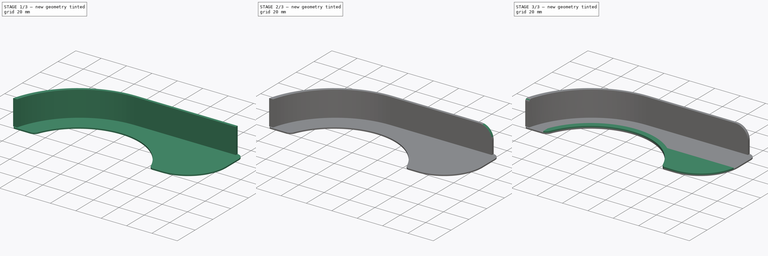
[diagram: build sequence overview — one tinted view per stage of 3, left to right]
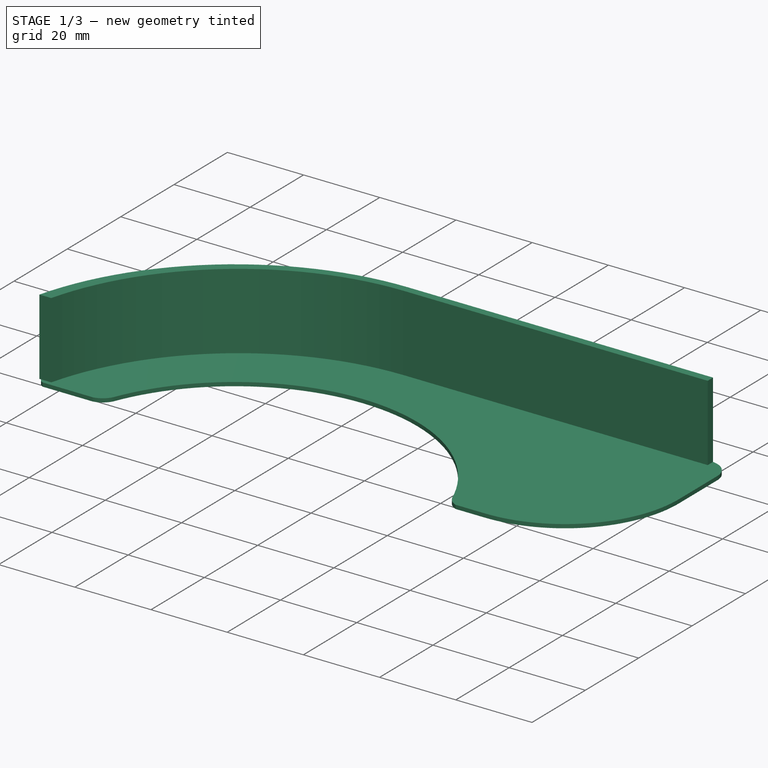
[diagram: stage 1 of 3 — iso view after this stage's code; geometry added in this stage tinted green]
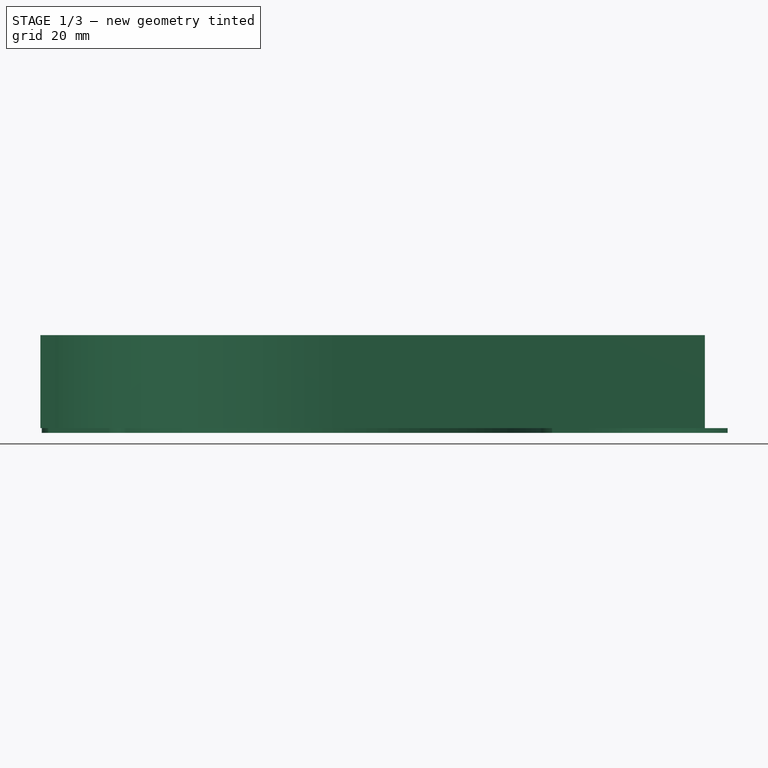
[diagram: stage 1 of 3 — front view after this stage's code; geometry added in this stage tinted green]
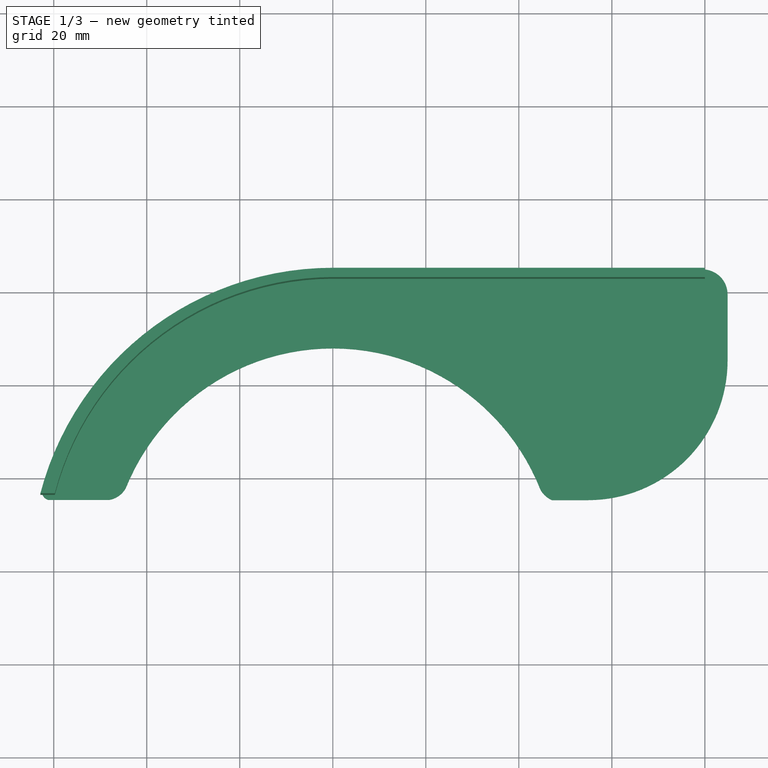
[diagram: stage 1 of 3 — top view after this stage's code; geometry added in this stage tinted green]
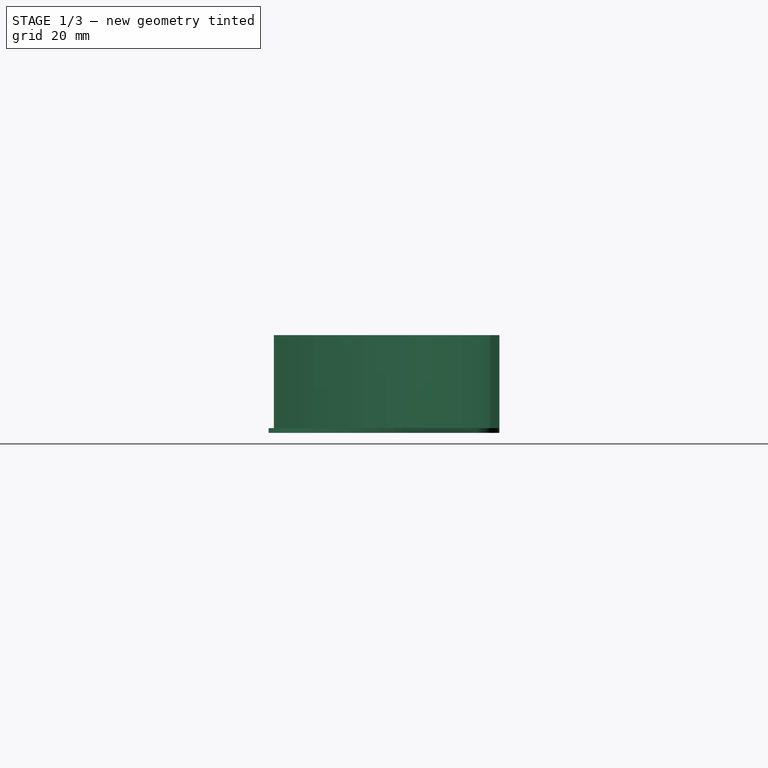
[diagram: stage 1 of 3 — right view after this stage's code; geometry added in this stage tinted green]
FCSTD DOCUMENT  (FreeCAD 0.16R)
Label: V2
License: All rights reserved
LicenseURL: http://en.wikipedia.org/wiki/All_rights_reserved
objects: Sketcher::SketchObject×3, PartDesign::Pad×3, PartDesign::Fillet×2
note: 11 computed .brp shape members not serialized (recipe doc carries the construction recipe); baked Part::Feature solids carry a one-line shape summary decoded from their .brp

FEATURE [PartDesign::Pad] Pad  label="Faceplate"
  Length = 1
  Length2 = 100
  Sketch = -> Sketch
  Type = 0
FEATURE [Sketcher::SketchObject] Sketch001
  Placement = pos=(0,0,1) rot=(0,0,1;0rad)
  Support = -> Pad [Face13]
  sketch-geometry (6):
    g0: ArcOfCircle CenterX=0 CenterY=0 CenterZ=0 NormalX=0 NormalY=0 NormalZ=1 Radius=65 StartAngle=1.5708 EndAngle=2.88461
    g1: LineSegment StartX=6.04881e-05 StartY=65 StartZ=0 EndX=80.0001 EndY=65 EndZ=0
    g2: LineSegment StartX=80.0001 StartY=63 StartZ=0 EndX=6.04881e-05 EndY=63 EndZ=0
    g3: LineSegment StartX=80.0001 StartY=65 StartZ=0 EndX=80.0001 EndY=63 EndZ=0
    g4: ArcOfCircle CenterX=0.26057 CenterY=1.00055 CenterZ=0 NormalX=0 NormalY=0 NormalZ=1 Radius=62 StartAngle=1.575 EndAngle=2.88858
    g5: LineSegment StartX=-62.8655 StartY=16.5204 StartZ=0 EndX=-59.7655 EndY=16.5204 EndZ=0
  constraints (19):
    c: Radius(g0) = 65
    c: Coincident(g-1,g0)
    c: Horizontal(g1)
    c: Coincident(g0,g1)
    c: DistanceY(g-1,g1) = 65
    c: Horizontal(g2)
    c: Equal(g2,g1)
    c: DistanceX(g0,g2) = 0
    c: Coincident(g3,g2)
    c: Coincident(g3,g1)
    c: DistanceY(g2,g1) = 2
    c: Radius(g4) = 62
    c: Coincident(g4,g2)
    c: DistanceX(g0,g4) = 3.1
    c: DistanceY(g4,g0) = 0
    c: DistanceY(g-1,g0) = 16.5204
    c: Coincident(g4,g5)
    c: Coincident(g5,g0)
    c: Distance(g1) = 80
FEATURE [PartDesign::Pad] Pad004  label="Connector"
  Length = 20
  Length2 = 100
  Sketch = -> Sketch001
  Type = 0
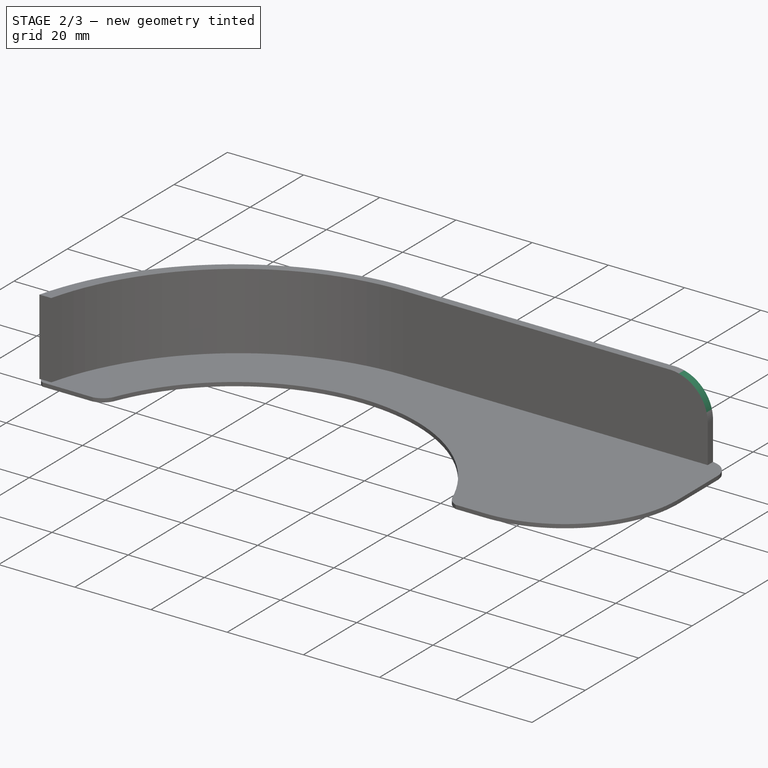
[diagram: stage 2 of 3 — iso view after this stage's code; geometry added in this stage tinted green]
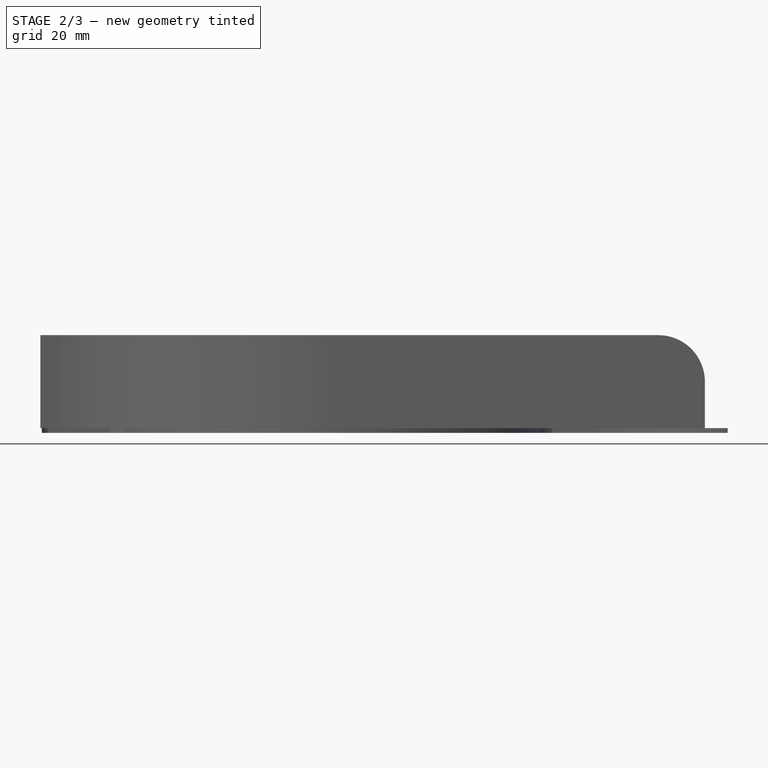
[diagram: stage 2 of 3 — front view after this stage's code; geometry added in this stage tinted green]
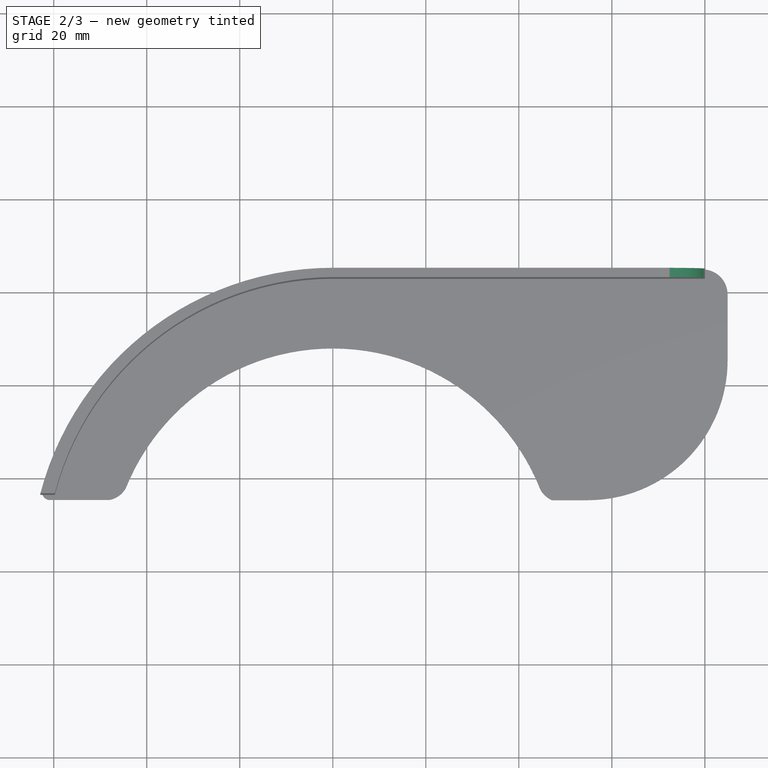
[diagram: stage 2 of 3 — top view after this stage's code; geometry added in this stage tinted green]
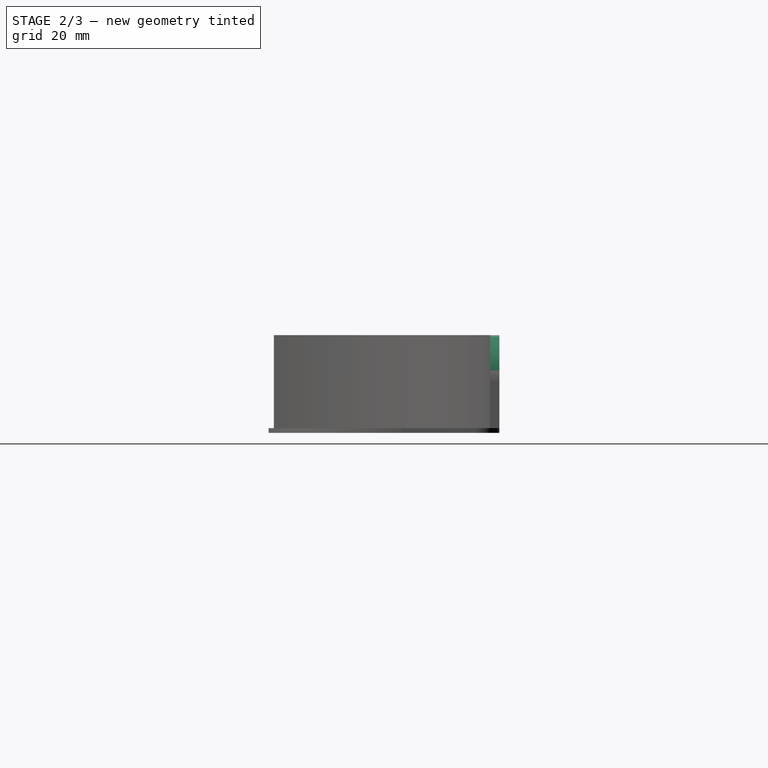
[diagram: stage 2 of 3 — right view after this stage's code; geometry added in this stage tinted green]
FEATURE [PartDesign::Fillet] Fillet
  Base = -> Pad004 [Edge52]
  Radius = 10
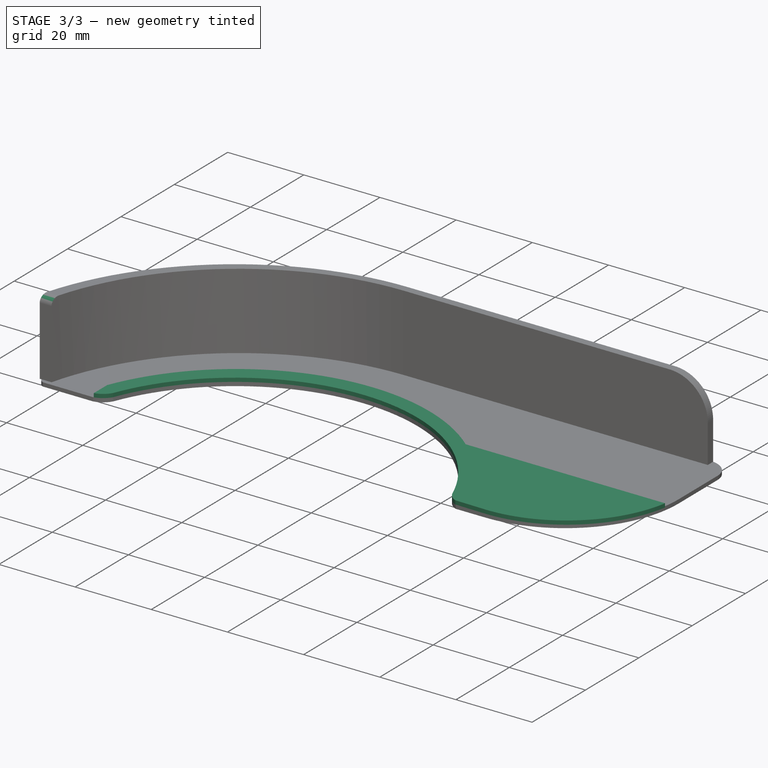
[diagram: stage 3 of 3 — iso view after this stage's code; geometry added in this stage tinted green]
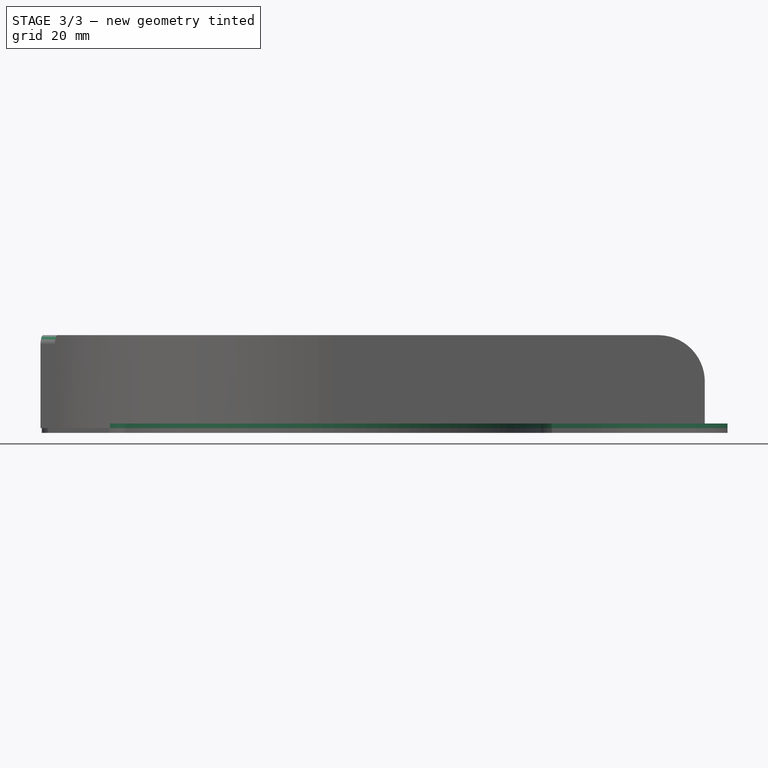
[diagram: stage 3 of 3 — front view after this stage's code; geometry added in this stage tinted green]
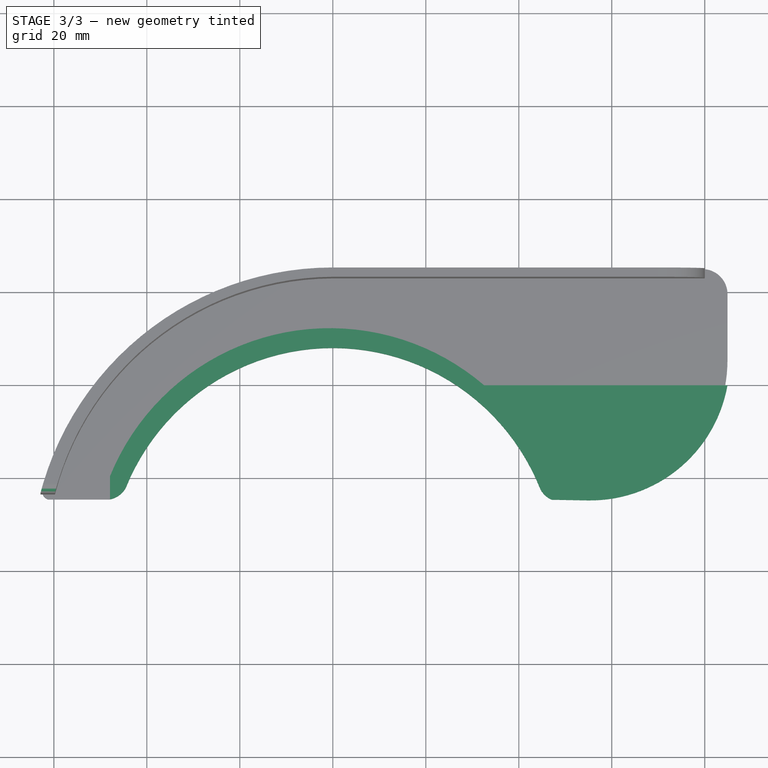
[diagram: stage 3 of 3 — top view after this stage's code; geometry added in this stage tinted green]
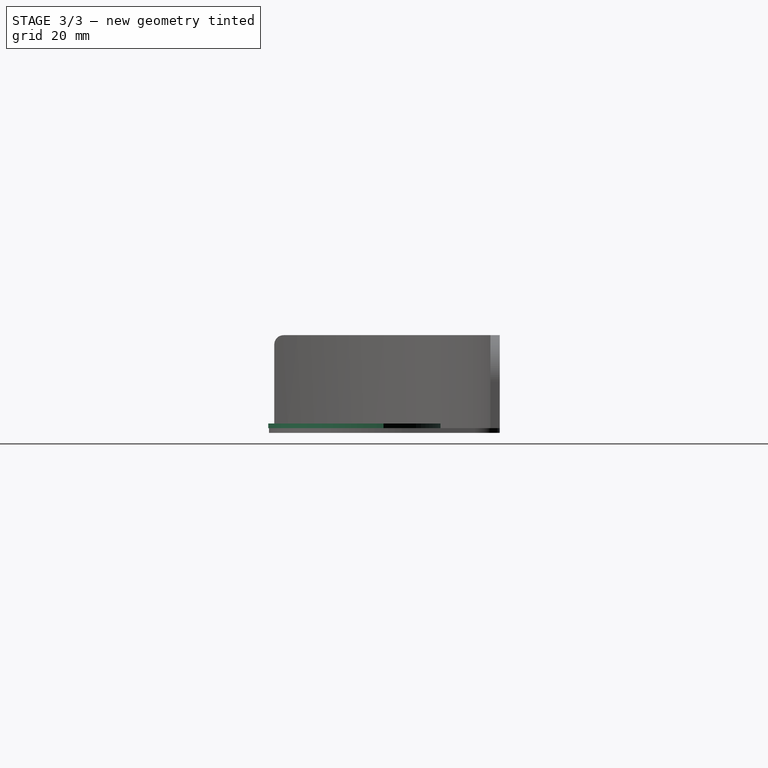
[diagram: stage 3 of 3 — right view after this stage's code; geometry added in this stage tinted green]
FEATURE [Sketcher::SketchObject] Sketch
  sketch-geometry (11):
    g0: ArcOfCircle CenterX=0 CenterY=0 CenterZ=0 NormalX=0 NormalY=0 NormalZ=1 Radius=65 StartAngle=1.5708 EndAngle=2.86744
    g1: ArcOfCircle CenterX=0 CenterY=0 CenterZ=0 NormalX=0 NormalY=0 NormalZ=1 Radius=48 StartAngle=0.377003 EndAngle=2.75854
    g2: LineSegment StartX=2.40667e-07 StartY=65 StartZ=0 EndX=79.4942 EndY=65 EndZ=0
    g3: LineSegment StartX=47.168 StartY=15.3736 StartZ=0 EndX=54.9232 EndY=15.3842 EndZ=0
    g4: LineSegment StartX=84.8824 StartY=59.6118 StartZ=0 EndX=84.8824 EndY=45.3841 EndZ=0
    g5: ArcOfCircle CenterX=54.8824 CenterY=45.3841 CenterZ=0 NormalX=0 NormalY=0 NormalZ=1 Radius=30 StartAngle=4.71375 EndAngle=6.28319
    g6: ArcOfCircle CenterX=79.4942 CenterY=59.6118 CenterZ=0 NormalX=0 NormalY=0 NormalZ=1 Radius=5.38817 StartAngle=0 EndAngle=1.5708
    g7: ArcOfCircle CenterX=49.0502 CenterY=20.0058 CenterZ=0 NormalX=0 NormalY=0 NormalZ=1 Radius=5 StartAngle=3.62755 EndAngle=4.32643
    g8: ArcOfCircle CenterX=-60.5912 CenterY=17.3257 CenterZ=0 NormalX=0 NormalY=0 NormalZ=1 Radius=2 StartAngle=3.00536 EndAngle=4.40537
    g9: ArcOfCircle CenterX=-48.9002 CenterY=20.3538 CenterZ=0 NormalX=0 NormalY=0 NormalZ=1 Radius=5 StartAngle=4.8743 EndAngle=5.77943
    g10: LineSegment StartX=-61.1956 StartY=15.4192 StartZ=0 EndX=-48.0942 EndY=15.4192 EndZ=0
  constraints (35):
    c: Radius(g0) = 65
    c: Coincident(g-1,g0)
    c: PointOnObject(g1,g-2)
    c: Coincident(g1,g-1)
    c: Radius(g1) = 48
    c: Horizontal(g2)
    c: Coincident(g0,g2)
    c: Vertical(g4)
    c: Tangent(g4,g5) = 1.5708
    c: Tangent(g3,g5) = -1.5708
    c: Tangent(g4,g6) = 1.5708
    c: Tangent(g2,g6) = 1.5708
    c: Radius(g7) = 5
    c: Radius(g9) = 5
    c: Radius(g8) = 2
    c: Coincident(g3,g7)
    c: Coincident(g1,g7)
    c: Coincident(g10,g9)
    c: Coincident(g1,g9)
    c: Coincident(g10,g8)
    c: Coincident(g0,g8)
    c: Distance(g10) = 13.1014
    c: Distance(g2) = 79.4942
    c: Distance(g3) = 7.75526
    c: Distance(g4) = 14.2277
    c: Radius(g5) = 30
    c: Radius(g6) = 5.38817
    c: DistanceY(g-1,g2) = 65
    c: DistanceY(g3) = 15.3736
    c: DistanceY(g9) = 15.4192
    c: DistanceY(g0) = 17.5973
    c: DistanceY(g1) = 17.9402
    c: DistanceY(g8) = 15.4192
    c: DistanceY(g1) = 17.6705
    c: DistanceX(g8) = -61.1956
FEATURE [Sketcher::SketchObject] Sketch002
  Placement = pos=(0,0,1) rot=(0,0,1;0rad)
  sketch-geometry (8):
    g0: ArcOfCircle CenterX=0 CenterY=0 CenterZ=0 NormalX=0 NormalY=0 NormalZ=1 Radius=48 StartAngle=0.377003 EndAngle=2.75854
    g1: LineSegment StartX=47.0328 StartY=15.3736 StartZ=0 EndX=54.7867 EndY=15.2303 EndZ=0
    g2: ArcOfCircle CenterX=55.341 CenterY=45.2252 CenterZ=0 NormalX=0 NormalY=0 NormalZ=1 Radius=30 StartAngle=4.69391 EndAngle=6.10812
    g3: ArcOfCircle CenterX=49.0887 CenterY=19.9313 CenterZ=0 NormalX=0 NormalY=0 NormalZ=1 Radius=5 StartAngle=3.61079 EndAngle=4.28863
    g4: ArcOfCircle CenterX=-48.9021 CenterY=20.3504 CenterZ=0 NormalX=0 NormalY=0 NormalZ=1 Radius=5 StartAngle=4.91142 EndAngle=5.7802
    g5: ArcOfCircle CenterX=-0.655187 CenterY=1.27485 CenterZ=0 NormalX=0 NormalY=0 NormalZ=1 Radius=51 StartAngle=0.862262 EndAngle=2.75615
    g6: LineSegment StartX=84.8825 StartY=40 StartZ=0 EndX=32.5316 EndY=40 EndZ=0
    g7: LineSegment StartX=-47.9135 StartY=20.4491 StartZ=0 EndX=-47.9135 EndY=15.4491 EndZ=0
  constraints (29):
    c: PointOnObject(g0,g-2)
    c: Coincident(g0,g-1)
    c: Radius(g0) = 48
    c: Tangent(g1,g2) = -1.5708
    c: Radius(g3) = 5
    c: Radius(g4) = 5
    c: Coincident(g1,g3)
    c: Coincident(g0,g3)
    c: Coincident(g0,g4)
    c: Distance(g1) = 7.75526
    c: Radius(g2) = 30
    c: DistanceY(g1) = 15.3736
    c: DistanceY(g0) = 17.9402
    c: DistanceY(g0) = 17.6705
    c: DistanceX(g4,g5) = 0
    c: DistanceX(g5) = -47.9135
    c: DistanceY(g4) = 15.4491
    c: DistanceY(g4,g5) = 5
    c: Radius(g5) = 51
    c: Coincident(g6,g2)
    c: Coincident(g5,g6)
    c: Vertical(g7)
    c: Coincident(g7,g5)
    c: Coincident(g7,g4)
    c: DistanceY(g5) = 40
    c: DistanceX(g2) = 84.8825
    c: DistanceY(g1) = 15.2303
    c: DistanceX(g5) = 32.5316
    c: Horizontal(g6)
FEATURE [PartDesign::Pad] Pad002  label="Stiffener"
  Length = 1
  Length2 = 100
  Placement = pos=(0,0,1) rot=(0,0,1;0rad)
  Sketch = -> Sketch002
  Type = 0
FEATURE [PartDesign::Fillet] Fillet001
  Base = -> Fillet [Edge25]
  Radius = 2
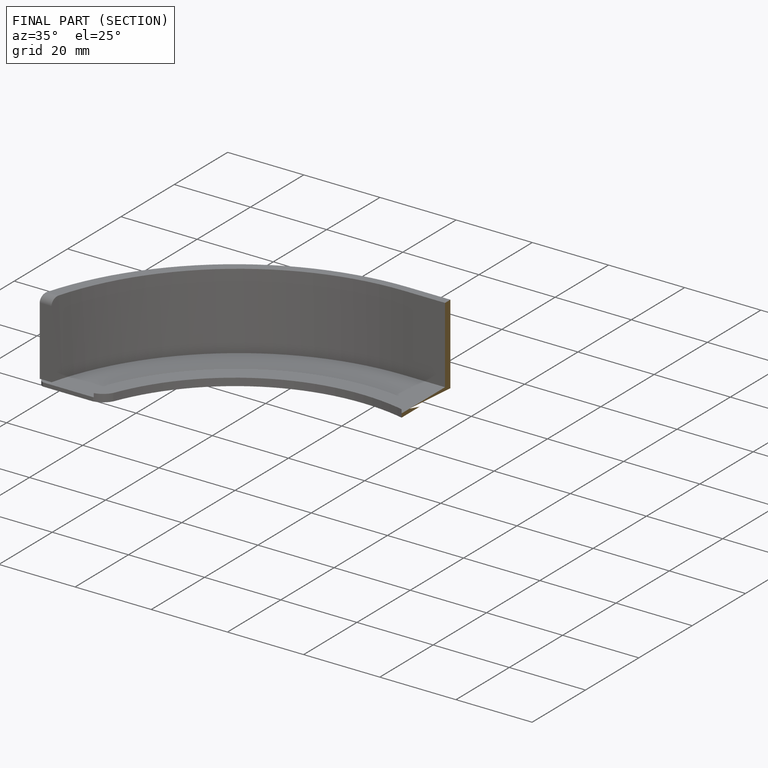
[diagram: finished part — half-section view (interior)]
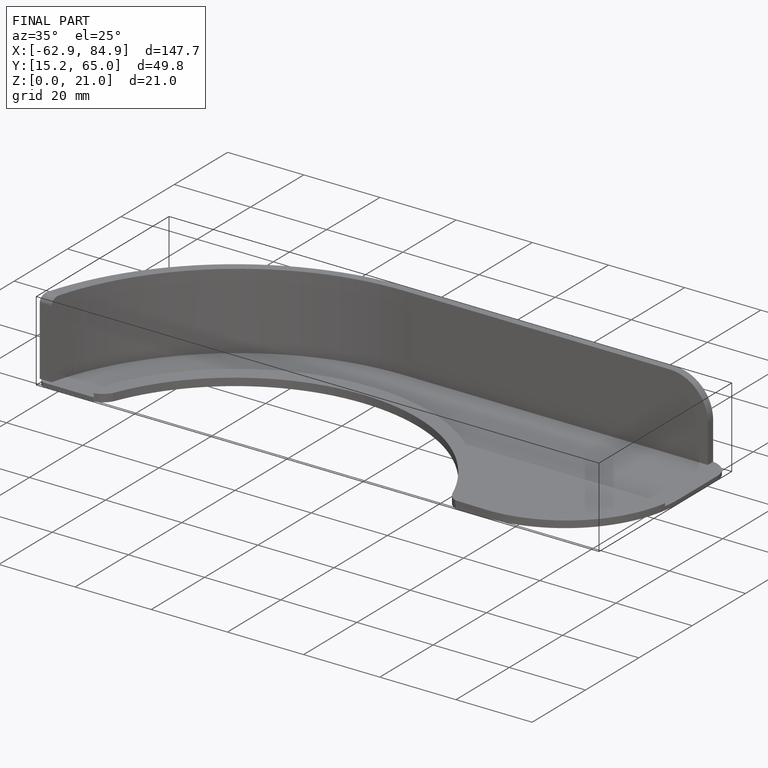
[diagram: finished part — iso view with bounding-box wireframe]
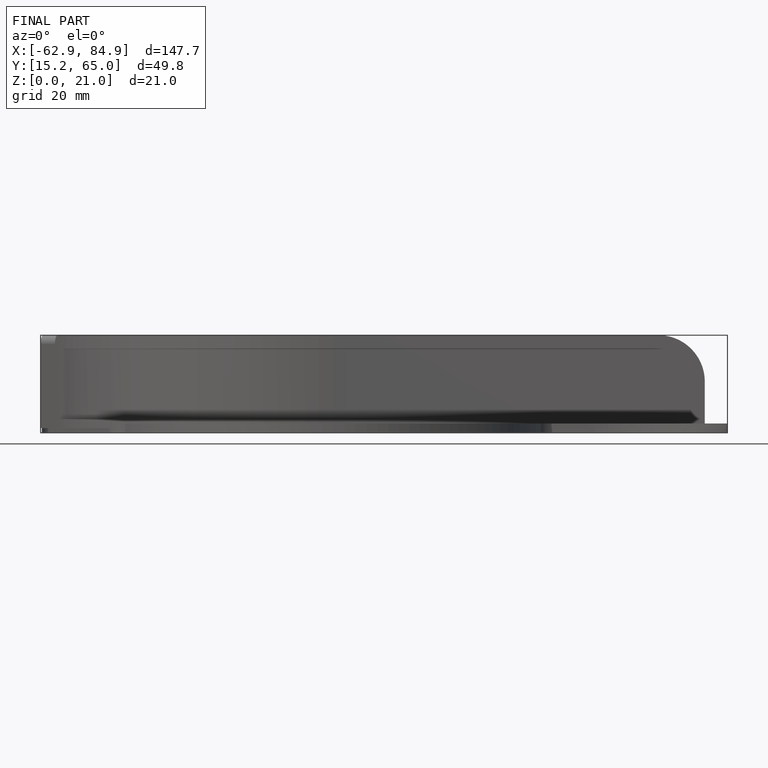
[diagram: finished part — front view with bounding-box wireframe]
